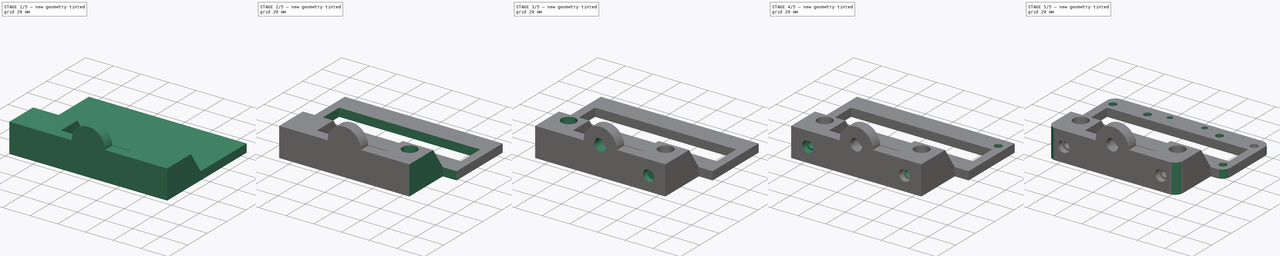
[diagram: build sequence overview — one tinted view per stage of 5, left to right]
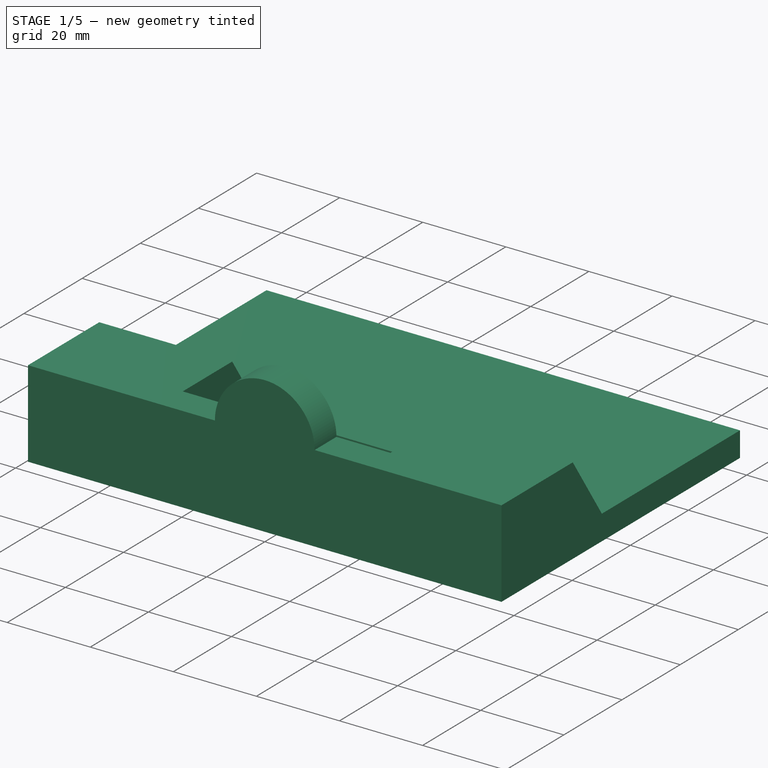
[diagram: stage 1 of 5 — iso view after this stage's code; geometry added in this stage tinted green]
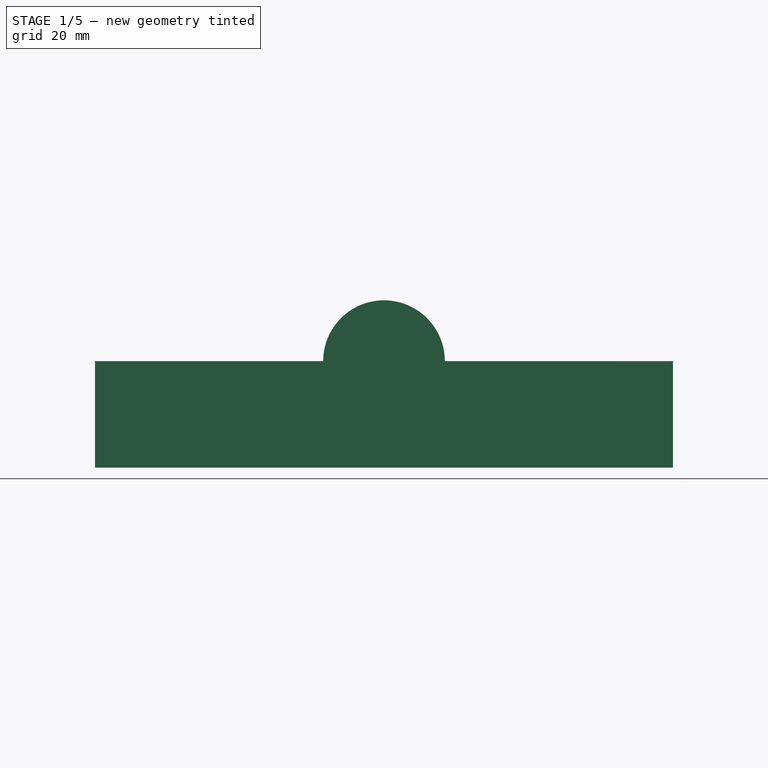
[diagram: stage 1 of 5 — front view after this stage's code; geometry added in this stage tinted green]
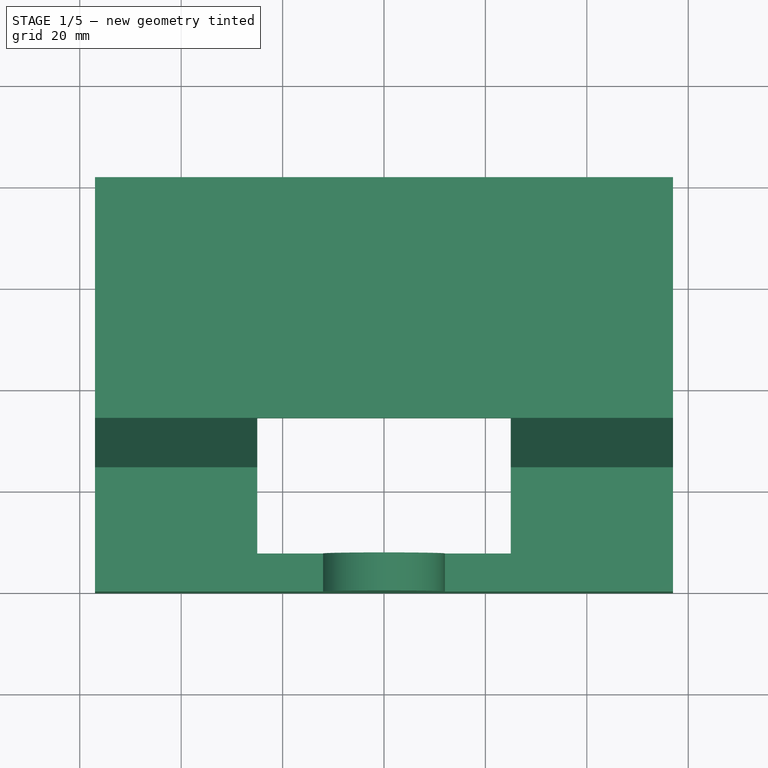
[diagram: stage 1 of 5 — top view after this stage's code; geometry added in this stage tinted green]
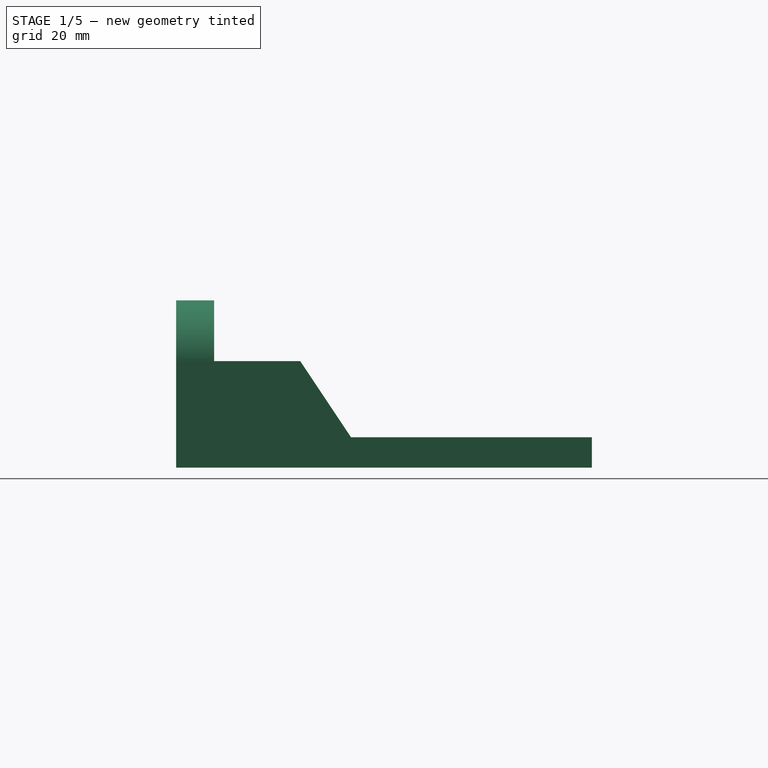
[diagram: stage 1 of 5 — right view after this stage's code; geometry added in this stage tinted green]
FCSTD DOCUMENT
Label: X_BearingForSpring
objects: Sketcher::SketchObject×12, PartDesign::Pocket×11, PartDesign::Mirrored×6, PartDesign::LinearPattern×3, PartDesign::MultiTransform×2, PartDesign::Pad×1, PartDesign::Fillet×1
note: 48 computed .brp shape members not serialized (recipe doc carries the construction recipe); baked Part::Feature solids carry a one-line shape summary decoded from their .brp

FEATURE [Sketcher::SketchObject] Sketch
  sketch-geometry (4):
    g0: LineSegment StartX=-57 StartY=0 StartZ=0 EndX=57 EndY=0 EndZ=0
    g1: LineSegment StartX=57 StartY=0 StartZ=0 EndX=57 EndY=82 EndZ=0
    g2: LineSegment StartX=57 StartY=82 StartZ=0 EndX=-57 EndY=82 EndZ=0
    g3: LineSegment StartX=-57 StartY=82 StartZ=0 EndX=-57 EndY=0 EndZ=0
  constraints (12):
    c: Coincident(g0,g1)
    c: Coincident(g1,g2)
    c: Coincident(g2,g3)
    c: Coincident(g3,g0)
    c: Horizontal(g0)
    c: Horizontal(g2)
    c: Vertical(g1)
    c: Vertical(g3)
    c: DistanceX(g2) = -114
    c: DistanceY(g1) = 82
    c: Symmetric(g0,g0,g-2)
    c: PointOnObject(g0,g-1)
FEATURE [PartDesign::Pad] Pad
  Length = 35
  Length2 = 100
  Sketch = -> Sketch
  Type = 0
FEATURE [Sketcher::SketchObject] Sketch002  label="Sketch001"
  ExternalGeometry = -> [Pad]
  Placement = pos=(57,0,0) rot=(0.57735,0.57735,0.57735;2.0944rad)
  Support = -> Pad [Face2]
  sketch-geometry (5):
    g0: LineSegment StartX=14.5 StartY=36 StartZ=0 EndX=83 EndY=36 EndZ=0
    g1: LineSegment StartX=83 StartY=36 StartZ=0 EndX=83 EndY=6 EndZ=0
    g2: LineSegment StartX=83 StartY=6 StartZ=0 EndX=34.5 EndY=6 EndZ=0
    g3: LineSegment StartX=14.5 StartY=36 StartZ=0 EndX=34.5 EndY=6 EndZ=0
    g4: GeomPoint [constr] X=24.5 Y=21 Z=0
  constraints (14):
    c: Coincident(g0,g1)
    c: Coincident(g1,g2)
    c: Horizontal(g0)
    c: Horizontal(g2)
    c: Vertical(g1)
    c: Coincident(g2,g3)
    c: DistanceY(g-3,g1) = 6
    c: DistanceX(g-3,g2) = -47.5
    c: DistanceX(g-3,g0) = 1
    c: DistanceY(g0,g-3) = -1
    c: Coincident(g3,g0)
    c: PointOnObject(g4,g3)
    c: DistanceX(g4,g2) = 10
    c: DistanceY(g-1,g4) = 21
FEATURE [PartDesign::Pocket] Pocket
  Length = 5
  Sketch = -> Sketch002
  Type = 1
FEATURE [Sketcher::SketchObject] Sketch001  label="Sketch016"
  ExternalGeometry = -> [Pocket]
  Placement = pos=(0,0,0) rot=(1,0,0;1.5708rad)
  Support = -> Pocket [Face1]
  sketch-geometry (6):
    g0: LineSegment StartX=-58 StartY=36 StartZ=0 EndX=58 EndY=36 EndZ=0
    g1: LineSegment StartX=58 StartY=36 StartZ=0 EndX=58 EndY=21 EndZ=0
    g2: LineSegment StartX=58 StartY=21 StartZ=0 EndX=12 EndY=21 EndZ=0
    g3: LineSegment StartX=-58 StartY=21 StartZ=0 EndX=-58 EndY=36 EndZ=0
    g4: ArcOfCircle CenterX=0 CenterY=21 CenterZ=0 NormalX=0 NormalY=0 NormalZ=1 Radius=12 StartAngle=0 EndAngle=3.14159
    g5: LineSegment StartX=-12 StartY=21 StartZ=0 EndX=-58 EndY=21 EndZ=0
  constraints (18):
    c: Coincident(g0,g1)
    c: Coincident(g1,g2)
    c: Coincident(g5,g3)
    c: Coincident(g3,g0)
    c: Horizontal(g0)
    c: Horizontal(g2)
    c: Vertical(g1)
    c: Vertical(g3)
    c: Coincident(g2,g4)
    c: Coincident(g5,g4)
    c: Tangent(g2,g5)
    c: Perpendicular(g4,g5)
    c: Equal(g5,g2)
    c: PointOnObject(g4,g-2)
    c: Radius(g4) = 12
    c: DistanceX(g-3,g0) = -1
    c: DistanceY(g0,g-3) = -1
    c: DistanceY(g3,g-3) = -21
FEATURE [PartDesign::Pocket] Pocket001
  Length = 5
  Sketch = -> Sketch001
  Type = 1
FEATURE [Sketcher::SketchObject] Sketch003
  ExternalGeometry = -> [Pocket001]
  Placement = pos=(0,0,21) rot=(0,0,1;0rad)
  Support = -> Pocket001 [Face8]
  sketch-geometry (4):
    g0: LineSegment StartX=-25 StartY=34.5 StartZ=0 EndX=25 EndY=34.5 EndZ=0
    g1: LineSegment StartX=25 StartY=34.5 StartZ=0 EndX=25 EndY=7.5 EndZ=0
    g2: LineSegment StartX=25 StartY=7.5 StartZ=0 EndX=-25 EndY=7.5 EndZ=0
    g3: LineSegment StartX=-25 StartY=7.5 StartZ=0 EndX=-25 EndY=34.5 EndZ=0
  constraints (12):
    c: Coincident(g0,g1)
    c: Coincident(g1,g2)
    c: Coincident(g2,g3)
    c: Coincident(g3,g0)
    c: Horizontal(g0)
    c: Horizontal(g2)
    c: Vertical(g1)
    c: Vertical(g3)
    c: Symmetric(g0,g0,g-2)
    c: PointOnObject(g0,g-4)
    c: DistanceY(g2,g-3) = -7.5
    c: DistanceX(g2) = -50
FEATURE [PartDesign::Pocket] Pocket002
  Length = 5
  Midplane = true
  Sketch = -> Sketch003
  Type = 1
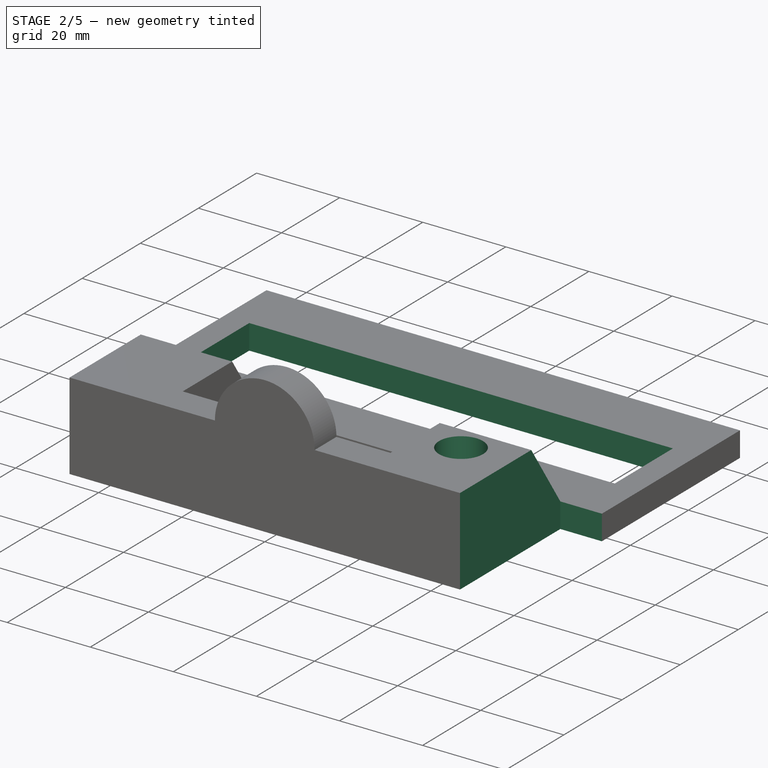
[diagram: stage 2 of 5 — iso view after this stage's code; geometry added in this stage tinted green]
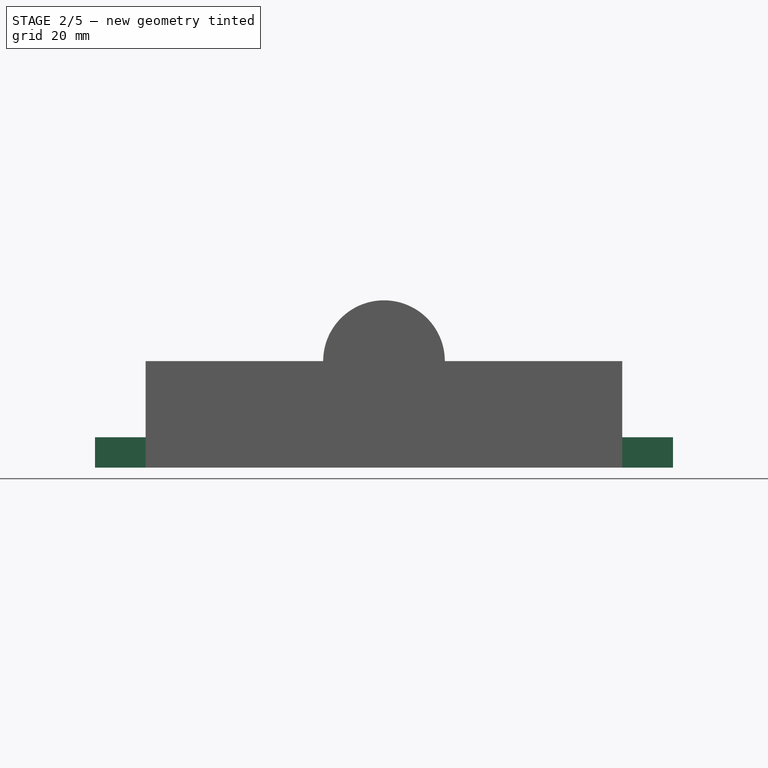
[diagram: stage 2 of 5 — front view after this stage's code; geometry added in this stage tinted green]
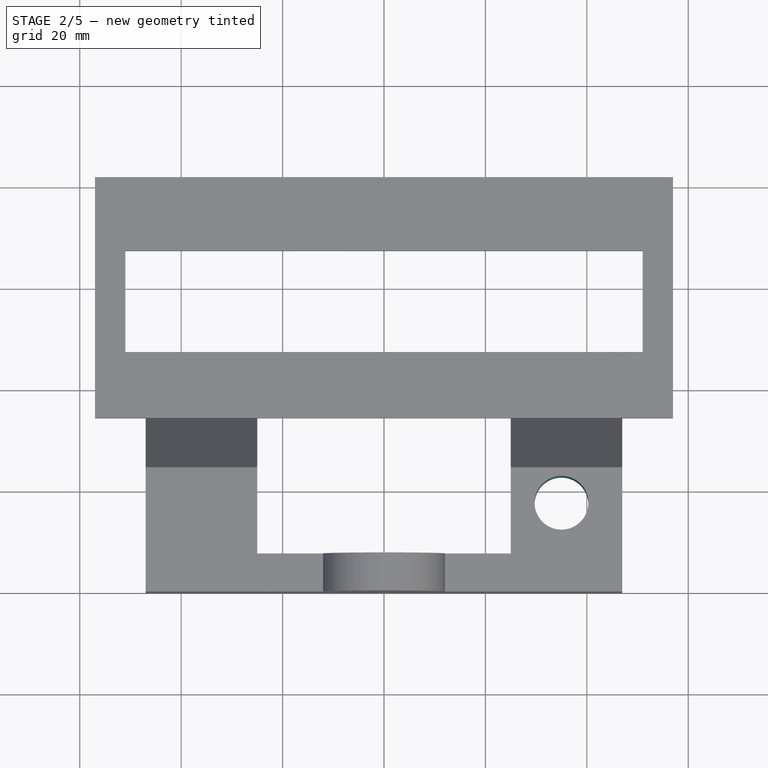
[diagram: stage 2 of 5 — top view after this stage's code; geometry added in this stage tinted green]
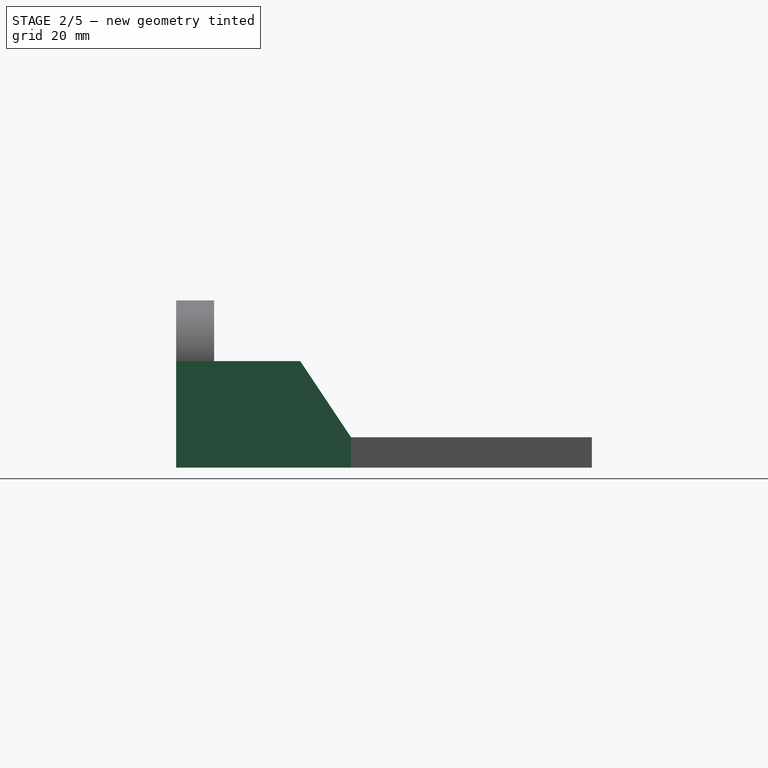
[diagram: stage 2 of 5 — right view after this stage's code; geometry added in this stage tinted green]
FEATURE [Sketcher::SketchObject] Sketch004
  ExternalGeometry = -> [Pocket002]
  Placement = pos=(0,0,6) rot=(0,0,1;0rad)
  Support = -> Pocket002 [Face13]
  sketch-geometry (4):
    g0: LineSegment StartX=-51 StartY=67.5 StartZ=0 EndX=51 EndY=67.5 EndZ=0
    g1: LineSegment StartX=51 StartY=67.5 StartZ=0 EndX=51 EndY=47.5 EndZ=0
    g2: LineSegment StartX=51 StartY=47.5 StartZ=0 EndX=-51 EndY=47.5 EndZ=0
    g3: LineSegment StartX=-51 StartY=47.5 StartZ=0 EndX=-51 EndY=67.5 EndZ=0
  constraints (12):
    c: Coincident(g0,g1)
    c: Coincident(g1,g2)
    c: Coincident(g2,g3)
    c: Coincident(g3,g0)
    c: Horizontal(g0)
    c: Horizontal(g2)
    c: Vertical(g1)
    c: Vertical(g3)
    c: Symmetric(g2,g1,g-2)
    c: DistanceX(g0) = 102
    c: DistanceY(g1) = -20
    c: DistanceY(g-3,g2) = 13
FEATURE [PartDesign::Pocket] Pocket003
  Length = 5
  Sketch = -> Sketch004
  Type = 1
FEATURE [Sketcher::SketchObject] Sketch011
  ExternalGeometry = -> [Pocket003]
  Placement = pos=(0,0,21) rot=(0,0,1;0rad)
  Support = -> Pocket003 [Face4]
  sketch-geometry (4):
    g0: LineSegment StartX=47 StartY=34.5 StartZ=0 EndX=58 EndY=34.5 EndZ=0
    g1: LineSegment StartX=58 StartY=34.5 StartZ=0 EndX=58 EndY=-1 EndZ=0
    g2: LineSegment StartX=58 StartY=-1 StartZ=0 EndX=47 EndY=-1 EndZ=0
    g3: LineSegment StartX=47 StartY=-1 StartZ=0 EndX=47 EndY=34.5 EndZ=0
  constraints (12):
    c: Coincident(g0,g1)
    c: Coincident(g1,g2)
    c: Coincident(g2,g3)
    c: Coincident(g3,g0)
    c: Horizontal(g0)
    c: Horizontal(g2)
    c: Vertical(g1)
    c: Vertical(g3)
    c: PointOnObject(g0,g-3)
    c: DistanceX(g0,g-3) = -1
    c: DistanceY(g-4,g1) = -1
    c: DistanceX(g-4,g2) = -10
FEATURE [PartDesign::Pocket] Pocket004
  Length = 5
  Sketch = -> Sketch011
  Type = 1
FEATURE [PartDesign::Mirrored] Mirrored
  Originals = -> [Pocket004]
  StdMirrorPlane = YZ
FEATURE [Sketcher::SketchObject] Sketch005
  ExternalGeometry = -> [Mirrored]
  Placement = pos=(0,0,21) rot=(0,0,1;0rad)
  Support = -> Mirrored [Face2]
  sketch-geometry (1):
    g0: Circle CenterX=35 CenterY=17.5 CenterZ=0 NormalX=0 NormalY=0 NormalZ=1 Radius=5.3
  constraints (3):
    c: Radius(g0) = 5.3
    c: DistanceY(g0,g-3) = -17.5
    c: DistanceX(g0,g-3) = 12
FEATURE [PartDesign::Pocket] Pocket005
  Length = 5
  Sketch = -> Sketch005
  Type = 1
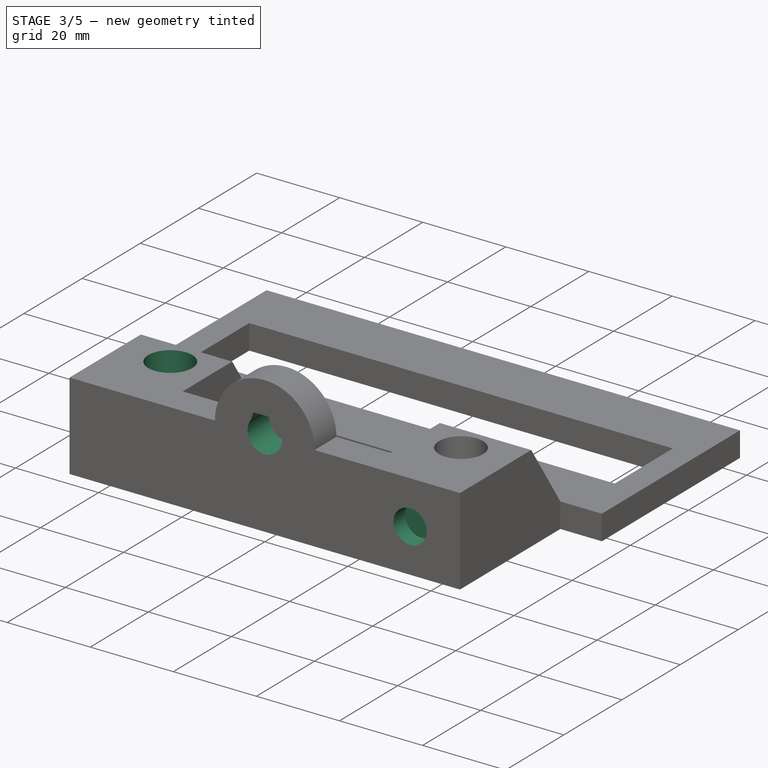
[diagram: stage 3 of 5 — iso view after this stage's code; geometry added in this stage tinted green]
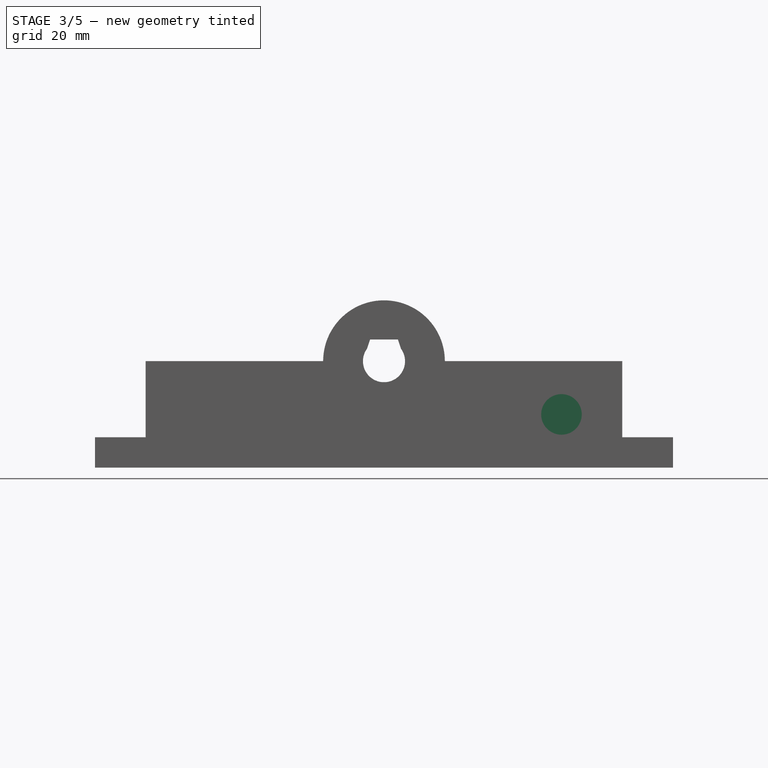
[diagram: stage 3 of 5 — front view after this stage's code; geometry added in this stage tinted green]
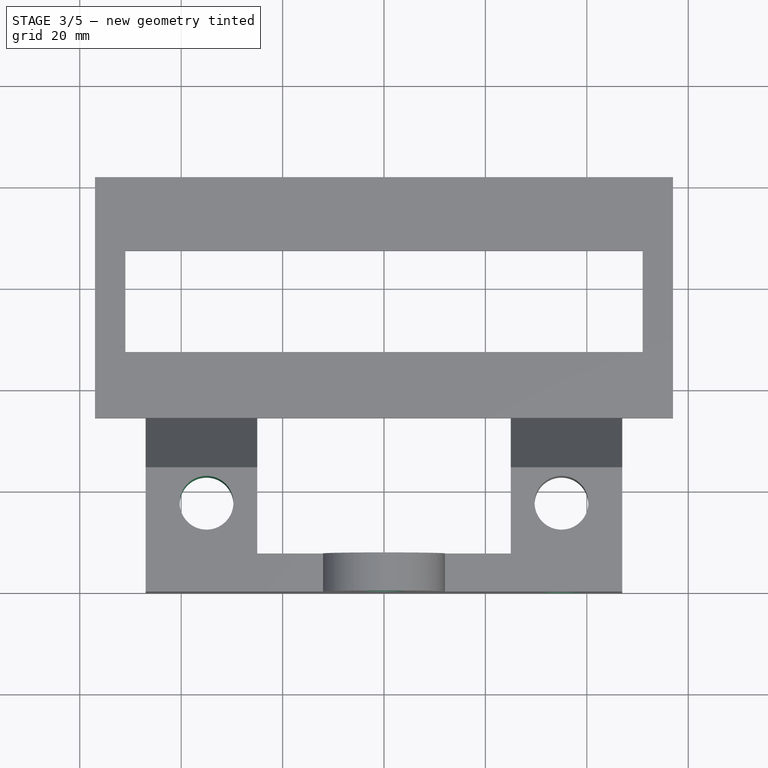
[diagram: stage 3 of 5 — top view after this stage's code; geometry added in this stage tinted green]
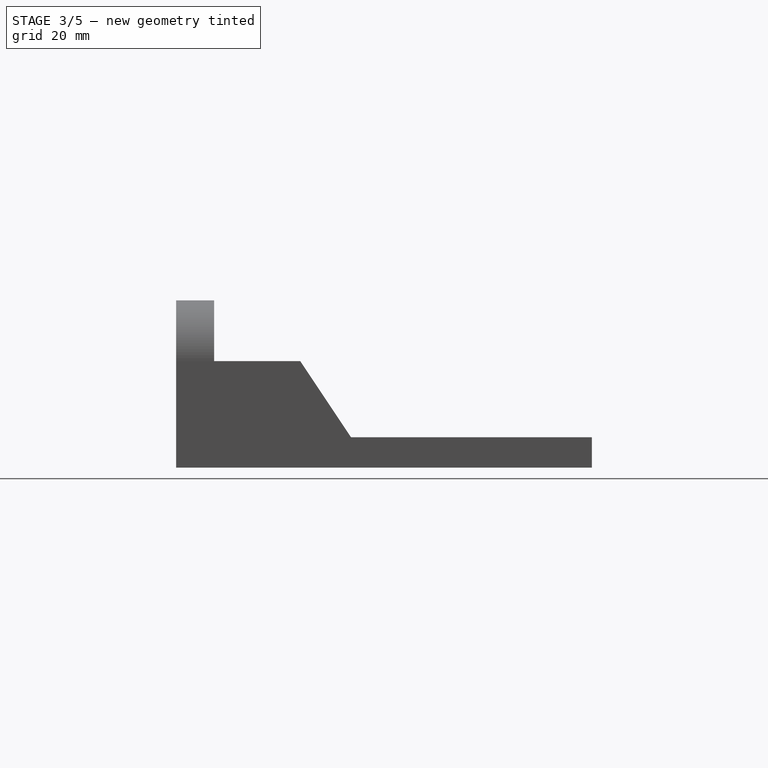
[diagram: stage 3 of 5 — right view after this stage's code; geometry added in this stage tinted green]
FEATURE [PartDesign::Mirrored] Mirrored001
  Originals = -> [Pocket005]
  StdMirrorPlane = YZ
FEATURE [Sketcher::SketchObject] Sketch006
  ExternalGeometry = -> [Mirrored001]
  Placement = pos=(0,0,0) rot=(1,0,0;1.5708rad)
  Support = -> Mirrored001 [Face3]
  sketch-geometry (6):
    g0: ArcOfCircle CenterX=0 CenterY=21 CenterZ=0 NormalX=0 NormalY=0 NormalZ=1 Radius=4.15 StartAngle=4.81716 EndAngle=6.91147
    g1: LineSegment StartX=0.434 StartY=16.8728 StartZ=0 EndX=-0.434 EndY=16.8728 EndZ=0
    g2: LineSegment StartX=-3.3575 StartY=23.4392 StartZ=0 EndX=-2.75 EndY=25.2838 EndZ=0
    g3: LineSegment StartX=2.75 StartY=25.2838 StartZ=0 EndX=3.3575 EndY=23.4392 EndZ=0
    g4: ArcOfCircle CenterX=0 CenterY=21 CenterZ=0 NormalX=0 NormalY=0 NormalZ=1 Radius=4.15 StartAngle=2.51331 EndAngle=4.60762
    g5: LineSegment StartX=-2.75 StartY=25.2838 StartZ=0 EndX=2.75 EndY=25.2838 EndZ=0
  constraints (19):
    c: Horizontal(g1)
    c: Coincident(g0,g1)
    c: Coincident(g4,g1)
    c: Symmetric(g4,g0,g-2)
    c: DistanceX(g1) = -0.868
    c: Equal(g0,g4)
    c: Coincident(g0,g3)
    c: Coincident(g4,g2)
    c: Coincident(g0,g4)
    c: Coincident(g5,g2)
    c: Coincident(g5,g3)
    c: Horizontal(g5)
    c: Coincident(g-3,g0)
    c: Radius(g0) = 4.15
    c: DistanceY(g2,g1) = -8.411
    c: Symmetric(g0,g2,g-2)
    c: DistanceX(g0,g2) = -6.715
    c: DistanceX(g5) = 5.5
    c: Equal(g3,g2)
FEATURE [PartDesign::Pocket] Pocket006
  Length = 5
  Sketch = -> Sketch006
  Type = 1
FEATURE [Sketcher::SketchObject] Sketch012  label="Sketch007"
  ExternalGeometry = -> [Pocket006]
  Placement = pos=(0,0,0) rot=(1,0,0;1.5708rad)
  Support = -> Pocket006 [Face3]
  sketch-geometry (1):
    g0: Circle CenterX=35 CenterY=10.5 CenterZ=0 NormalX=0 NormalY=0 NormalZ=1 Radius=4
  constraints (3):
    c: Radius(g0) = 4
    c: DistanceY(g0,g-3) = -10.5
    c: DistanceX(g0,g-3) = 12
FEATURE [PartDesign::Pocket] Pocket007
  Length = 4
  Sketch = -> Sketch012
  Type = 0
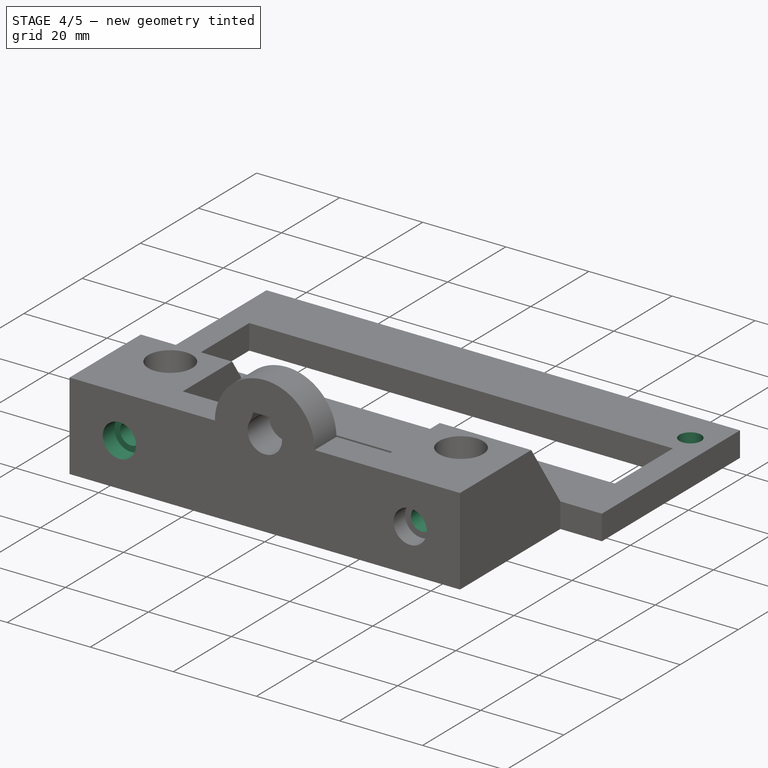
[diagram: stage 4 of 5 — iso view after this stage's code; geometry added in this stage tinted green]
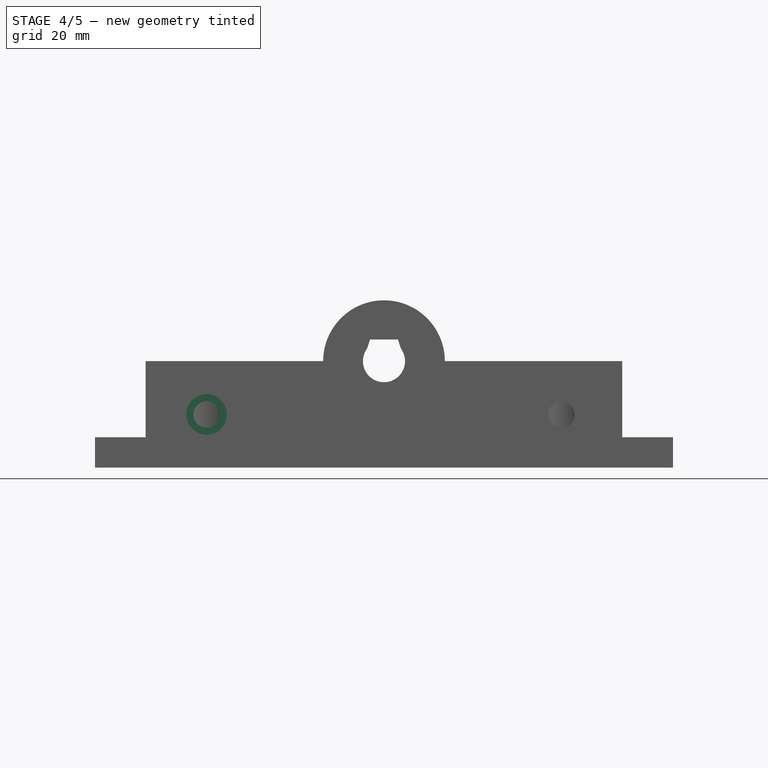
[diagram: stage 4 of 5 — front view after this stage's code; geometry added in this stage tinted green]
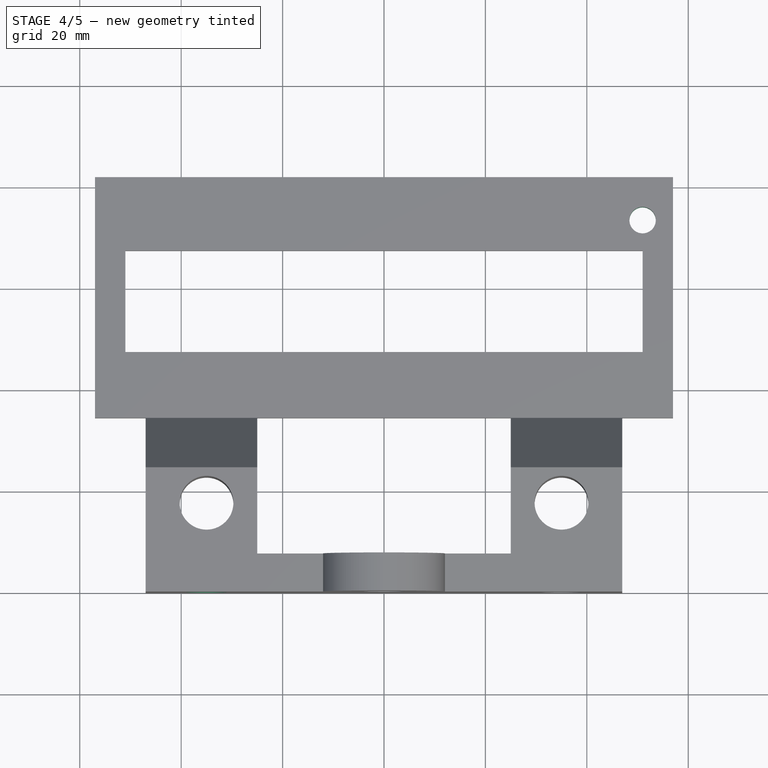
[diagram: stage 4 of 5 — top view after this stage's code; geometry added in this stage tinted green]
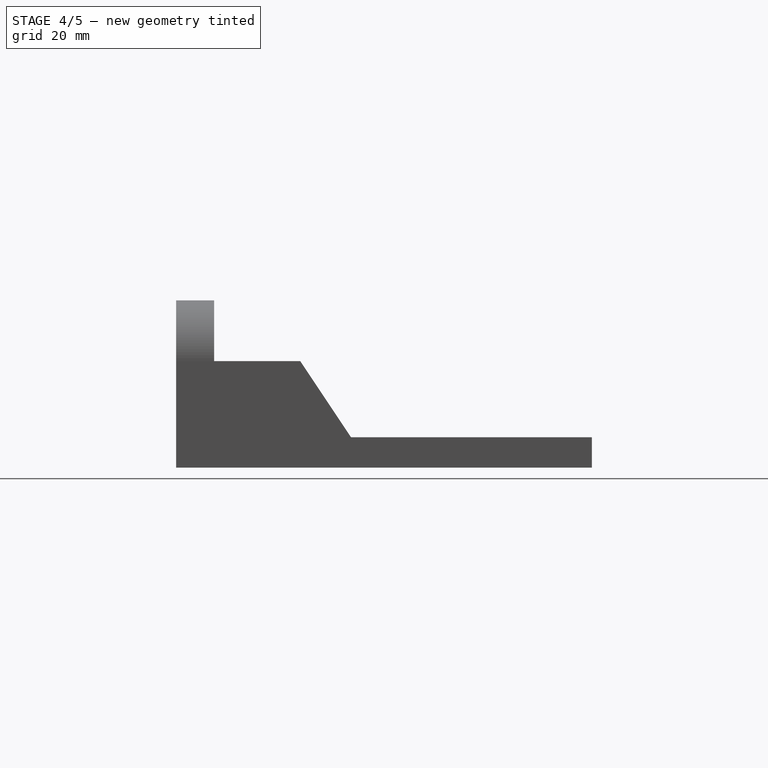
[diagram: stage 4 of 5 — right view after this stage's code; geometry added in this stage tinted green]
FEATURE [PartDesign::Mirrored] Mirrored002
  Originals = -> [Pocket007]
  StdMirrorPlane = YZ
FEATURE [Sketcher::SketchObject] Sketch013  label="Sketch008"
  ExternalGeometry = -> [Mirrored002]
  Placement = pos=(0,0,0) rot=(1,0,0;1.5708rad)
  Support = -> Mirrored002 [Face3]
  sketch-geometry (1):
    g0: Circle CenterX=35 CenterY=10.5 CenterZ=0 NormalX=0 NormalY=0 NormalZ=1 Radius=2.6
  constraints (2):
    c: Coincident(g0,g-3)
    c: Radius(g0) = 2.6
FEATURE [PartDesign::Pocket] Pocket008
  Length = 14
  Sketch = -> Sketch013
  Type = 0
FEATURE [PartDesign::Mirrored] Mirrored003
  Originals = -> [Pocket008]
  StdMirrorPlane = YZ
FEATURE [Sketcher::SketchObject] Sketch014  label="Sketch017"
  ExternalGeometry = -> [Mirrored003]
  Placement = pos=(0,0,6) rot=(0,0,1;0rad)
  Support = -> Mirrored003 [Face25]
  sketch-geometry (1):
    g0: Circle CenterX=51 CenterY=73.5 CenterZ=0 NormalX=0 NormalY=0 NormalZ=1 Radius=2.6
  constraints (3):
    c: Radius(g0) = 2.6
    c: DistanceX(g0,g-3) = 6
    c: DistanceY(g0,g-3) = 8.5
FEATURE [PartDesign::Pocket] Pocket009
  Length = 5
  Sketch = -> Sketch014
  Type = 1
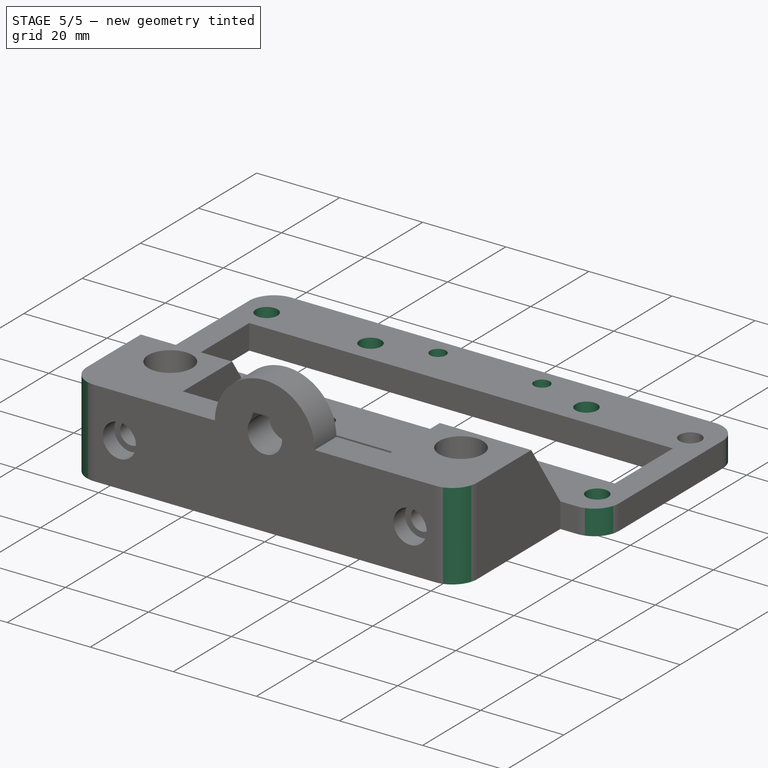
[diagram: stage 5 of 5 — iso view after this stage's code; geometry added in this stage tinted green]
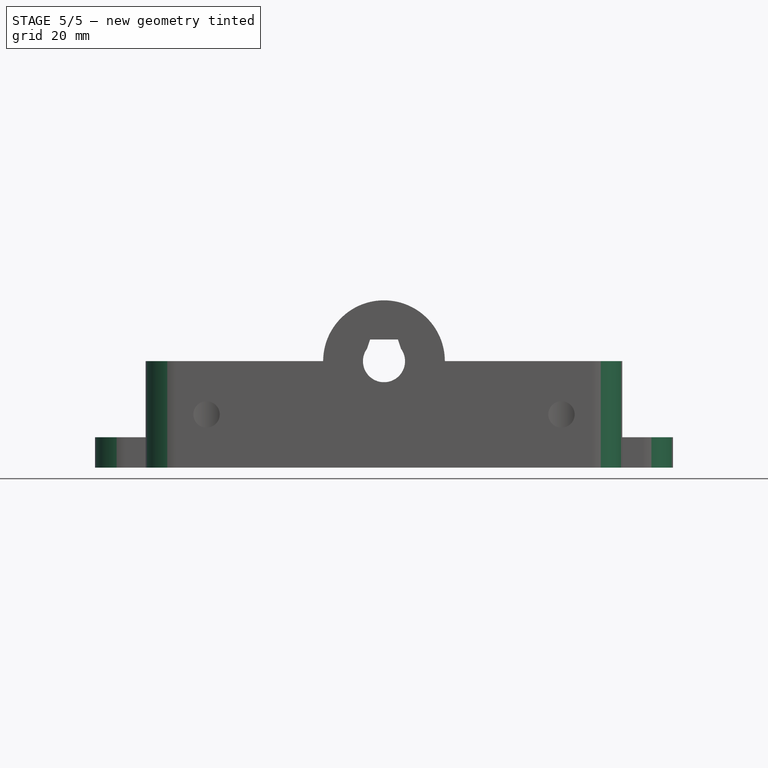
[diagram: stage 5 of 5 — front view after this stage's code; geometry added in this stage tinted green]
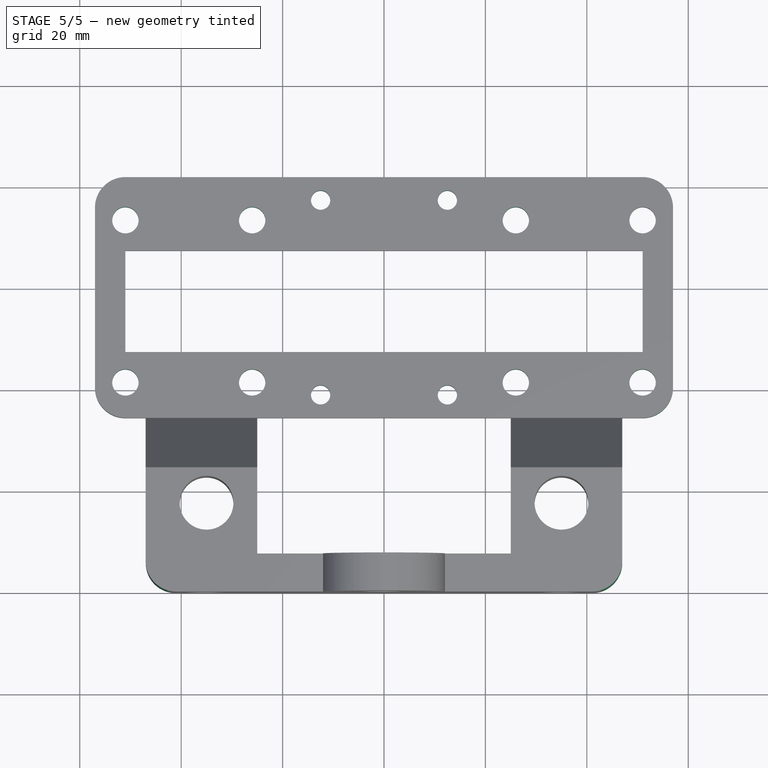
[diagram: stage 5 of 5 — top view after this stage's code; geometry added in this stage tinted green]
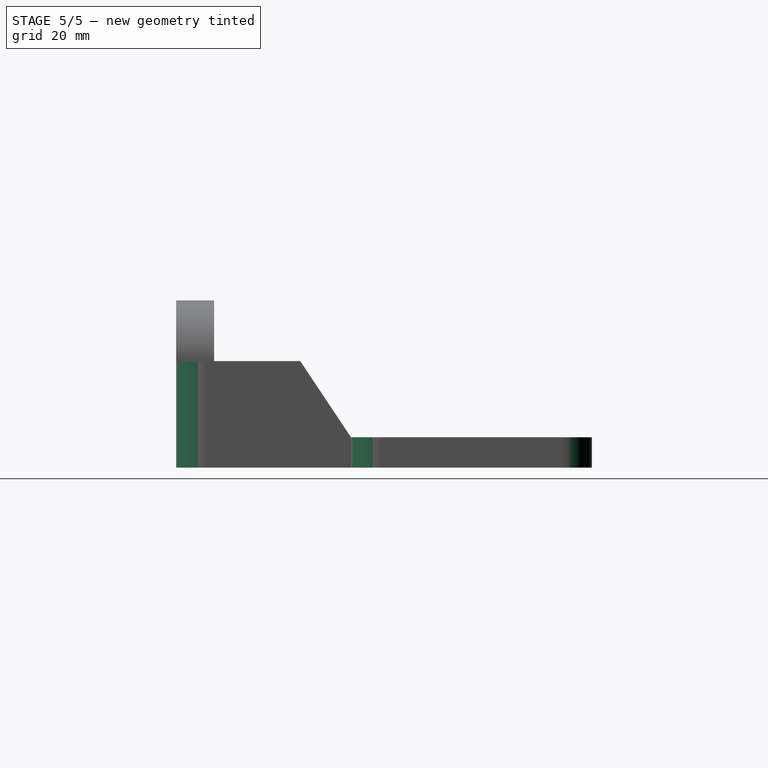
[diagram: stage 5 of 5 — right view after this stage's code; geometry added in this stage tinted green]
FEATURE [PartDesign::LinearPattern] LinearPattern
  Direction = -> Pocket009 [Edge89]
  Length = 32
  Occurrences = 2
FEATURE [PartDesign::LinearPattern] LinearPattern001
  Direction = -> Pocket009 [Edge90]
  Length = 25
  Occurrences = 2
FEATURE [PartDesign::Mirrored] Mirrored004
  StdMirrorPlane = YZ
FEATURE [PartDesign::MultiTransform] MultiTransform
  Originals = -> [Pocket009]
  Transformations = -> [LinearPattern,LinearPattern001,Mirrored004]
FEATURE [Sketcher::SketchObject] Sketch015  label="Sketch018"
  ExternalGeometry = -> [MultiTransform]
  Placement = pos=(0,0,6) rot=(0,0,1;0rad)
  Support = -> MultiTransform [Face25]
  sketch-geometry (1):
    g0: Circle CenterX=12.5 CenterY=77.45 CenterZ=0 NormalX=0 NormalY=0 NormalZ=1 Radius=1.9
  constraints (3):
    c: DistanceY(g0,g-3) = 4.55
    c: DistanceX(g0,g-3) = 44.5
    c: Radius(g0) = 1.9
FEATURE [PartDesign::Pocket] Pocket010
  Length = 5
  Sketch = -> Sketch015
  Type = 1
FEATURE [PartDesign::LinearPattern] LinearPattern002
  Direction = -> Pocket010 [Edge109]
  Length = 38.4
  Occurrences = 2
FEATURE [PartDesign::Mirrored] Mirrored005
  StdMirrorPlane = YZ
FEATURE [PartDesign::MultiTransform] MultiTransform001
  Originals = -> [Pocket010]
  Transformations = -> [LinearPattern002,Mirrored005]
FEATURE [PartDesign::Fillet] Fillet
  Base = -> MultiTransform001 [Edge146,Edge133,Edge18,Edge147,Edge109,Edge21]
  Radius = 6
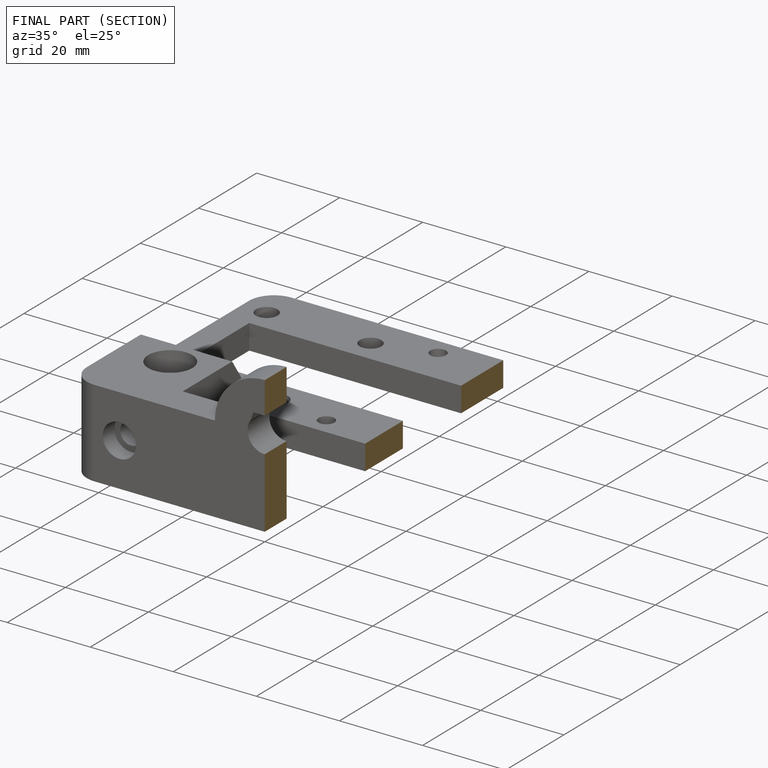
[diagram: finished part — half-section view (interior)]
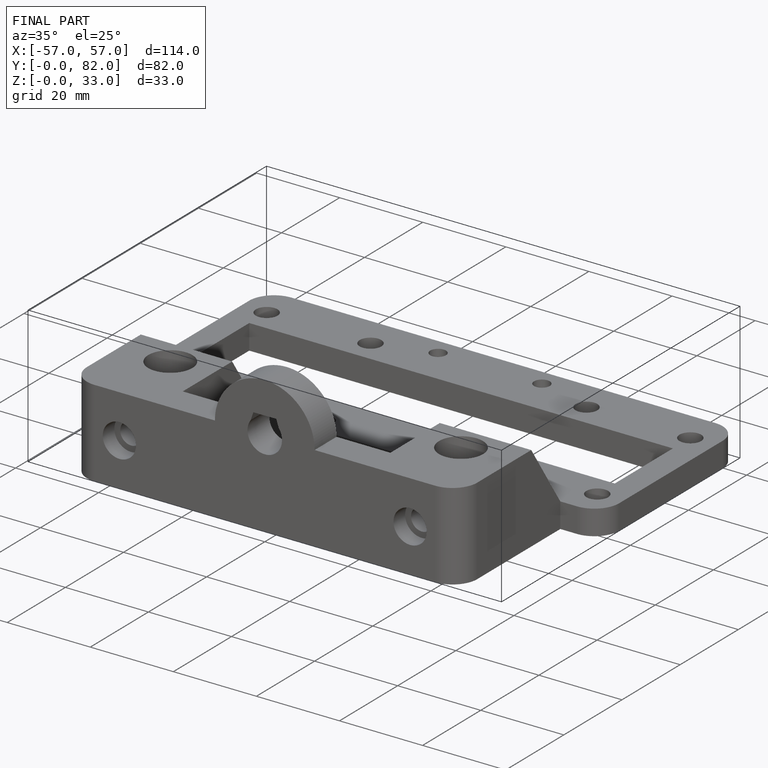
[diagram: finished part — iso view with bounding-box wireframe]
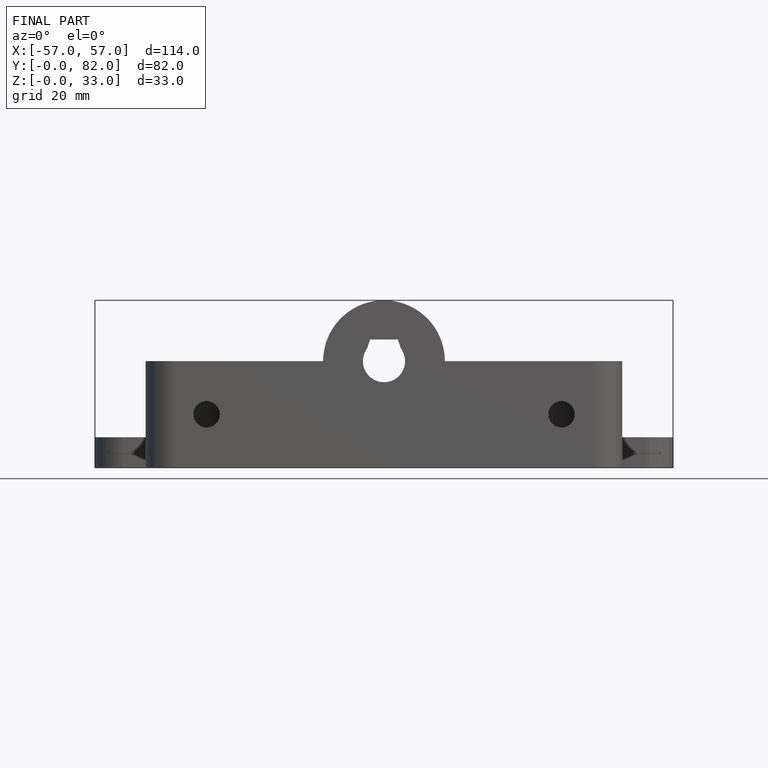
[diagram: finished part — front view with bounding-box wireframe]
